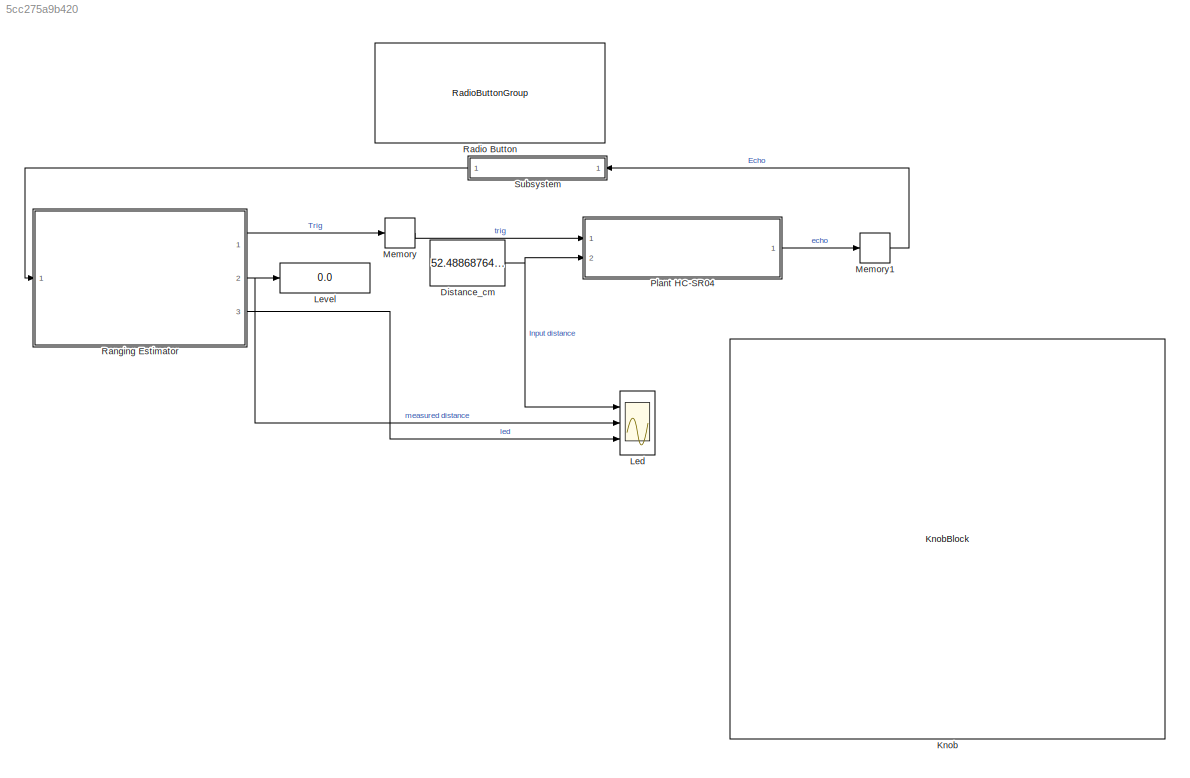
MODEL slx_5cc275a9b420
KIND model
CONFIG AbsTol = auto
CONFIG EnableMultiTasking = on
CONFIG FixedStep = T_sample_control
CONFIG MaxStep = auto
CONFIG MinStep = auto
CONFIG RelTol = 1e-3
CONFIG SampleTimeConstraint = Unconstrained
CONFIG SolverName = FixedStepDiscrete
CONFIG StartTime = 0.0
CONFIG StopTime = inf
BLOCK [Constant] Distance_cm
  Value = 52.48868764241536
BLOCK [KnobBlock] Knob
  ScaleMax = 410
  TickInterval = 10
BLOCK [Scope] Led
  Floating = off
  NumInputPorts = 3
  Ports = [3]
  ScopeSpecificationString = Simulink.scopes.TimeScopeBlockCfg('CurrentConfiguration', extmgr.ConfigurationSet(extmgr.Configuration('Core','General UI',true),extmgr.Configuration('Core','Source UI',true),extmgr.Configuration('Sources','WiredSimulink',true,'DataLoggingVariableName','ScopeData1'),extmgr.Configuration('Visuals','Time Domain',true,'SerializedDisplays',{struct('MinYLimReal','51.77449','MaxYLimReal','52.772','YLabe...<+1826ch>
BLOCK [Display] Level
  Decimation = 1
  Ports = [1]
BLOCK [Memory] Memory
BLOCK [Memory] Memory1
BLOCK [ModelReference] Plant HC-SR04
  ModelNameDialog = feedback_plant
  ModelReferenceVersion = 10.19
  Ports = [2, 1]
BLOCK [RadioButtonGroup] Radio Button
  ButtonGroupName = Disconnetion Button
  SelectedLabel = Sensor Connected
BLOCK [ModelReference] Ranging Estimator
  ModelNameDialog = feedback_control
  ModelReferenceVersion = 1.107
  Ports = [1, 3]
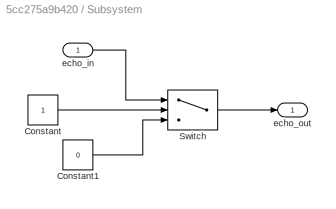
BLOCK [SubSystem] Subsystem
  NameLocation = left
  Ports = [1, 1]
  RequestExecContextInheritance = off
BLOCK [Constant] Subsystem/Constant
BLOCK [Constant] Subsystem/Constant1
  NameLocation = top
  OutDataTypeStr = boolean
  Value = 0
BLOCK [Switch] Subsystem/Switch
  Criteria = u2 > Threshold
  InputSameDT = off
  SaturateOnIntegerOverflow = off
BLOCK [Inport] Subsystem/echo_in
  OutDataTypeStr = boolean
BLOCK [Outport] Subsystem/echo_out
  OutDataTypeStr = boolean
NET Distance_cm:1 -> Led:1, Plant HC-SR04:2
LINE Memory1:1 -> Subsystem:1
LINE Memory:1 -> Plant HC-SR04:1
LINE Plant HC-SR04:1 -> Memory1:1
LINE Ranging Estimator:1 -> Memory:1
NET Ranging Estimator:2 -> Led:2, Level:1
LINE Ranging Estimator:3 -> Led:3
LINE Subsystem/Constant1:1 -> Subsystem/Switch:3
LINE Subsystem/Constant:1 -> Subsystem/Switch:2
LINE Subsystem/Switch:1 -> Subsystem/echo_out:1
LINE Subsystem/echo_in:1 -> Subsystem/Switch:1
LINE Subsystem:1 -> Ranging Estimator:1
note: NET lines group one-source signal fan-out (src -> all destinations, sorted); 1:1 wires keep LINE
CHART Stimuli states=22 transitions=28
  STATE_LABEL 'IN2'
  STATE_LABEL 'ON\nentry:\necho = true;'
  STATE_LABEL 'OFF\nentry:\necho = false;'
  STATE_LABEL 'after(667, usec)'
  STATE_LABEL 'after(60, msec)'
  STATE_LABEL 'ON\nentry:\necho = true;'
  STATE_LABEL 'OFF\nentry:\necho = false;'
  STATE_LABEL 'IN3'
  STATE_LABEL 'ON\nentry:\necho = true;'
  STATE_LABEL 'OFF\nentry:\necho = false;'
  STATE_LABEL 'after(5713, usec)'
  STATE_LABEL 'after(60, msec)'
  STATE_LABEL 'ON\nentry:\necho = true;'
  STATE_LABEL 'OFF\nentry:\necho = false;'
  STATE_LABEL 'IN4'
  STATE_LABEL 'ON\nentry:\necho = true;'
  STATE_LABEL 'OFF\nentry:\necho = false;'
  STATE_LABEL 'after(5800, usec)'
  STATE_LABEL 'after(60, msec)'
  STATE_LABEL 'ON\nentry:\necho = true;'
  STATE_LABEL 'OFF\nentry:\necho = false;'
  STATE_LABEL 'OUT2\n\n'
  STATE_LABEL 'ON\nentry:\necho = true;'
  STATE_LABEL 'OFF\nentry:\necho = false;'
  STATE_LABEL 'after(5945, usec)'
  STATE_LABEL 'after(60, msec)'
  STATE_LABEL 'ON\nentry:\necho = true;'
  STATE_LABEL 'OFF\nentry:\necho = false;'
  STATE_LABEL 'IN1'
  STATE_LABEL 'ON\nentry:\necho = true;'
  STATE_LABEL 'OFF\nentry:\necho = false;'
  STATE_LABEL 'after(580, usec)'
  STATE_LABEL 'after(60, msec)'
  STATE_LABEL 'ON\nentry:\necho = true;'
  STATE_LABEL 'OFF\nentry:\necho = false;'
  STATE_LABEL 'D1\nentry:\necho = false;'
  STATE_LABEL 'OUT1\n\n'
  STATE_LABEL 'ON\nentry:\necho = true;'
  STATE_LABEL 'OFF\nentry:\necho = false;'
  STATE_LABEL 'after(493, usec)'
